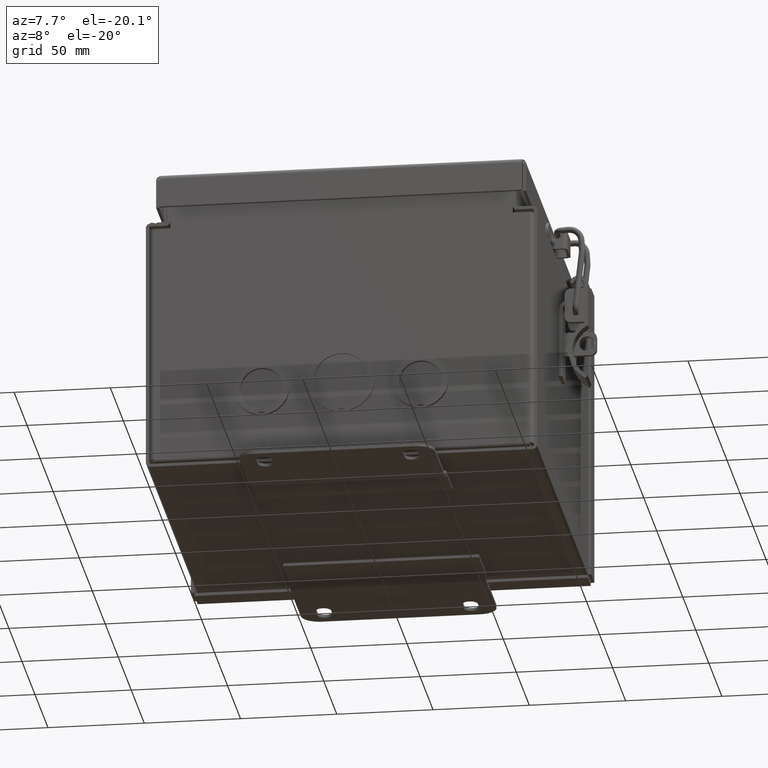
[diagram: clean part render]
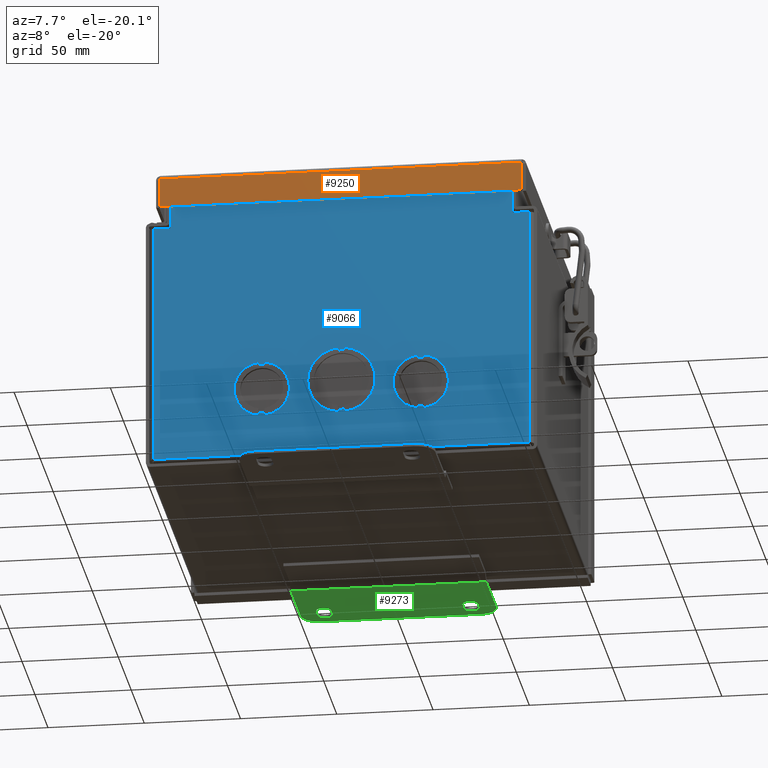
[diagram: same view with three faces highlighted in distinct colors, each labeled with its STEP entity id]
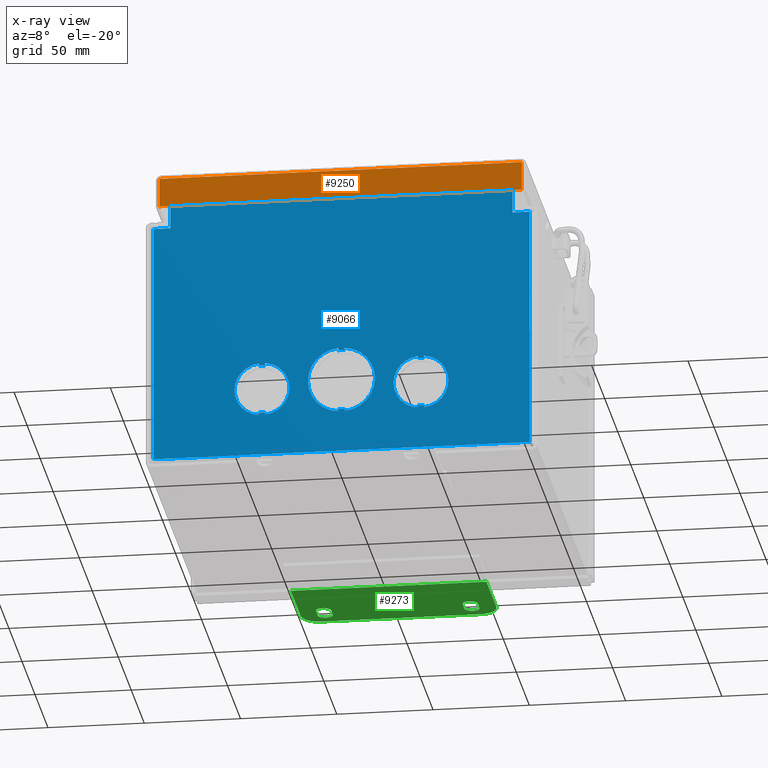
[diagram: x-ray of the same camera — body ghosted, the three highlighted faces saturated]
A machine part, auxiliary view with three faces highlighted in distinct colors.
The next image is the same camera in x-ray (body ghosted, the three faces saturated) — at least one of them is partly hidden behind the body in this view.
Their STEP definitions:

[orange] entity #9250 — the highlighted planar face has unit normal (0, 1, 0).
#533=PLANE($,#9872);
#960=FACE_OUTER_BOUND($,#1487,.T.);
#1487=EDGE_LOOP($,(#7232,#7233,#7234,#7235));
#2577=LINE($,#14626,#3503);
#2583=LINE($,#14654,#3509);
#2588=LINE($,#14716,#3514);
#2590=LINE($,#14719,#3516);
#3503=VECTOR($,#11548,7.41540291308792);
#3509=VECTOR($,#11558,0.59375);
#3514=VECTOR($,#11565,0.59375);
#3516=VECTOR($,#11569,7.41540291308792);
#4266=VERTEX_POINT($,#14624);
#4267=VERTEX_POINT($,#14625);
#4273=VERTEX_POINT($,#14653);
#4275=VERTEX_POINT($,#14715);
#5304=EDGE_CURVE($,#4266,#4267,#2577,.T.);
#5312=EDGE_CURVE($,#4273,#4267,#2583,.T.);
#5319=EDGE_CURVE($,#4266,#4275,#2588,.T.);
#5321=EDGE_CURVE($,#4275,#4273,#2590,.T.);
#7232=ORIENTED_EDGE($,*,*,#5304,.T.);
#7233=ORIENTED_EDGE($,*,*,#5312,.F.);
#7234=ORIENTED_EDGE($,*,*,#5321,.F.);
#7235=ORIENTED_EDGE($,*,*,#5319,.F.);
#9250=ADVANCED_FACE($,(#960),#533,.F.);
#9872=AXIS2_PLACEMENT_3D($,#14720,#11570,#11571);
#11548=DIRECTION($,(-1.,-2.99047488032506E-016,1.11348050429435E-030));
#11558=DIRECTION($,(4.93038065763132E-031,-5.39030285815812E-015,-1.));
#11565=DIRECTION($,(-4.93038065763132E-031,5.39030285815812E-015,1.));
#11569=DIRECTION($,(-1.,-3.75409045608864E-016,-1.90456163260947E-016));
#11570=DIRECTION('center_axis',(2.99047488032506E-016,-1.,5.86882326369301E-015));
#11571=DIRECTION('ref_axis',(1.,0.,-1.40998324127395E-016));
#14624=CARTESIAN_POINT('',(3.48895145654396,3.84375,0.0937499999999993));
#14625=CARTESIAN_POINT('',(-3.92645145654396,3.84375,0.0937499999999987));
#14626=CARTESIAN_POINT($,(-0.218750000000001,3.84375,0.0937499999999987));
#14653=CARTESIAN_POINT('',(-3.92645145654396,3.84375,0.687499999999998));
#14654=CARTESIAN_POINT($,(-3.92645145654396,3.84375,0.0937499999999979));
#14715=CARTESIAN_POINT('',(3.48895145654396,3.84375,0.6875));
#14716=CARTESIAN_POINT($,(3.48895145654396,3.84375,0.0937499999999993));
#14719=CARTESIAN_POINT($,(3.48895145654396,3.84375,0.6875));
#14720=CARTESIAN_POINT('Origin',(-0.21875,3.84375,0.345259844225641));

[blue] entity #9066 — the highlighted planar face has unit normal (0, -1, -0).
#179=FACE_BOUND($,#1297,.T.);
#180=FACE_BOUND($,#1298,.T.);
#181=FACE_BOUND($,#1299,.T.);
#182=FACE_BOUND($,#1300,.T.);
#401=PLANE($,#9675);
#1297=EDGE_LOOP($,(#6419,#6420,#6421,#6422,#6423,#6424,#6425,#6426,#6427,
#6428));
#1298=EDGE_LOOP($,(#6429,#6430,#6431,#6432,#6433,#6434,#6435,#6436));
#1299=EDGE_LOOP($,(#6437,#6438,#6439,#6440,#6441,#6442,#6443,#6444));
#1300=EDGE_LOOP($,(#6445,#6446,#6447,#6448,#6449,#6450,#6451,#6452));
#1826=CIRCLE($,#9616,0.6875);
#1830=CIRCLE($,#9624,0.6875);
#1838=CIRCLE($,#9647,0.5625);
#1840=CIRCLE($,#9653,0.5625);
#1846=CIRCLE($,#9676,0.5625);
#1847=CIRCLE($,#9677,0.5625);
#2161=LINE($,#13113,#3087);
#2164=LINE($,#13119,#3090);
#2168=LINE($,#13128,#3094);
#2175=LINE($,#13143,#3101);
#2189=LINE($,#13176,#3115);
#2234=LINE($,#13288,#3160);
#2237=LINE($,#13294,#3163);
#2241=LINE($,#13306,#3167);
#2244=LINE($,#13312,#3170);
#2247=LINE($,#13318,#3173);
#2251=LINE($,#13328,#3177);
#2290=LINE($,#13418,#3216);
#2291=LINE($,#13419,#3217);
#2292=LINE($,#13420,#3218);
#2293=LINE($,#13423,#3219);
#2294=LINE($,#13425,#3220);
#2295=LINE($,#13427,#3221);
#2296=LINE($,#13429,#3222);
#2297=LINE($,#13431,#3223);
#2298=LINE($,#13433,#3224);
#2299=LINE($,#13435,#3225);
#2300=LINE($,#13436,#3226);
#2301=LINE($,#13439,#3227);
#2302=LINE($,#13441,#3228);
#2303=LINE($,#13445,#3229);
#2304=LINE($,#13447,#3230);
#2305=LINE($,#13449,#3231);
#2306=LINE($,#13452,#3232);
#3087=VECTOR($,#10604,0.0624635646208575);
#3090=VECTOR($,#10609,0.0499999999999996);
#3094=VECTOR($,#10615,0.0624635646217545);
#3101=VECTOR($,#10626,0.0500000000000002);
#3115=VECTOR($,#10652,0.062463564621258);
#3160=VECTOR($,#10757,0.125220388418771);
#3163=VECTOR($,#10762,0.0499947152542752);
#3167=VECTOR($,#10774,0.0499947152542758);
#3170=VECTOR($,#10779,0.125000000214516);
#3173=VECTOR($,#10784,0.0499947152542758);
#3177=VECTOR($,#10796,0.0499947152542754);
#3216=VECTOR($,#10877,0.0624635646203624);
#3217=VECTOR($,#10878,0.0500000000000001);
#3218=VECTOR($,#10879,0.0499999999999996);
#3219=VECTOR($,#10880,7.);
#3220=VECTOR($,#10881,0.781250000000001);
#3221=VECTOR($,#10882,0.343749999999998);
#3222=VECTOR($,#10883,4.96875);
#3223=VECTOR($,#10884,7.6875);
#3224=VECTOR($,#10885,4.96875);
#3225=VECTOR($,#10886,0.343750000000001);
#3226=VECTOR($,#10887,0.781250000000001);
#3227=VECTOR($,#10888,0.125220388418771);
#3228=VECTOR($,#10889,0.0499947152542753);
#3229=VECTOR($,#10892,0.0499947152542758);
#3230=VECTOR($,#10893,0.125000000214515);
#3231=VECTOR($,#10894,0.0499947152542758);
#3232=VECTOR($,#10897,0.0499947152542756);
#3976=VERTEX_POINT($,#13109);
#3978=VERTEX_POINT($,#13112);
#3980=VERTEX_POINT($,#13118);
#3982=VERTEX_POINT($,#13124);
#3984=VERTEX_POINT($,#13127);
#3990=VERTEX_POINT($,#13142);
#4003=VERTEX_POINT($,#13174);
#4008=VERTEX_POINT($,#13187);
#4018=VERTEX_POINT($,#13214);
#4039=VERTEX_POINT($,#13285);
#4040=VERTEX_POINT($,#13287);
#4042=VERTEX_POINT($,#13293);
#4044=VERTEX_POINT($,#13299);
#4046=VERTEX_POINT($,#13305);
#4048=VERTEX_POINT($,#13311);
#4050=VERTEX_POINT($,#13317);
#4052=VERTEX_POINT($,#13323);
#4082=VERTEX_POINT($,#13417);
#4083=VERTEX_POINT($,#13421);
#4084=VERTEX_POINT($,#13422);
#4085=VERTEX_POINT($,#13424);
#4086=VERTEX_POINT($,#13426);
#4087=VERTEX_POINT($,#13428);
#4088=VERTEX_POINT($,#13430);
#4089=VERTEX_POINT($,#13432);
#4090=VERTEX_POINT($,#13434);
#4091=VERTEX_POINT($,#13437);
#4092=VERTEX_POINT($,#13438);
#4093=VERTEX_POINT($,#13440);
#4094=VERTEX_POINT($,#13442);
#4095=VERTEX_POINT($,#13444);
#4096=VERTEX_POINT($,#13446);
#4097=VERTEX_POINT($,#13448);
#4098=VERTEX_POINT($,#13450);
#4806=EDGE_CURVE($,#3978,#3976,#2161,.T.);
#4809=EDGE_CURVE($,#3980,#3978,#2164,.T.);
#4813=EDGE_CURVE($,#3984,#3982,#2168,.T.);
#4820=EDGE_CURVE($,#3990,#3984,#2175,.T.);
#4836=EDGE_CURVE($,#3976,#4003,#2189,.T.);
#4841=EDGE_CURVE($,#4008,#3990,#1826,.T.);
#4854=EDGE_CURVE($,#4018,#3980,#1830,.T.);
#4892=EDGE_CURVE($,#4040,#4039,#2234,.T.);
#4895=EDGE_CURVE($,#4042,#4040,#2237,.T.);
#4898=EDGE_CURVE($,#4044,#4042,#1838,.T.);
#4901=EDGE_CURVE($,#4046,#4044,#2241,.T.);
#4904=EDGE_CURVE($,#4048,#4046,#2244,.T.);
#4907=EDGE_CURVE($,#4050,#4048,#2247,.T.);
#4910=EDGE_CURVE($,#4052,#4050,#1840,.T.);
#4913=EDGE_CURVE($,#4039,#4052,#2251,.T.);
#4957=EDGE_CURVE($,#3982,#4082,#2290,.T.);
#4958=EDGE_CURVE($,#4082,#4018,#2291,.T.);
#4959=EDGE_CURVE($,#4003,#4008,#2292,.T.);
#4960=EDGE_CURVE($,#4083,#4084,#2293,.T.);
#4961=EDGE_CURVE($,#4084,#4085,#2294,.T.);
#4962=EDGE_CURVE($,#4086,#4085,#2295,.T.);
#4963=EDGE_CURVE($,#4086,#4087,#2296,.T.);
#4964=EDGE_CURVE($,#4087,#4088,#2297,.T.);
#4965=EDGE_CURVE($,#4088,#4089,#2298,.T.);
#4966=EDGE_CURVE($,#4090,#4089,#2299,.T.);
#4967=EDGE_CURVE($,#4090,#4083,#2300,.T.);
#4968=EDGE_CURVE($,#4091,#4092,#2301,.T.);
#4969=EDGE_CURVE($,#4092,#4093,#2302,.T.);
#4970=EDGE_CURVE($,#4093,#4094,#1846,.T.);
#4971=EDGE_CURVE($,#4094,#4095,#2303,.T.);
#4972=EDGE_CURVE($,#4095,#4096,#2304,.T.);
#4973=EDGE_CURVE($,#4096,#4097,#2305,.T.);
#4974=EDGE_CURVE($,#4097,#4098,#1847,.T.);
#4975=EDGE_CURVE($,#4098,#4091,#2306,.T.);
#6419=ORIENTED_EDGE($,*,*,#4813,.T.);
#6420=ORIENTED_EDGE($,*,*,#4957,.T.);
#6421=ORIENTED_EDGE($,*,*,#4958,.T.);
#6422=ORIENTED_EDGE($,*,*,#4854,.T.);
#6423=ORIENTED_EDGE($,*,*,#4809,.T.);
#6424=ORIENTED_EDGE($,*,*,#4806,.T.);
#6425=ORIENTED_EDGE($,*,*,#4836,.T.);
#6426=ORIENTED_EDGE($,*,*,#4959,.T.);
#6427=ORIENTED_EDGE($,*,*,#4841,.T.);
#6428=ORIENTED_EDGE($,*,*,#4820,.T.);
#6429=ORIENTED_EDGE($,*,*,#4960,.T.);
#6430=ORIENTED_EDGE($,*,*,#4961,.T.);
#6431=ORIENTED_EDGE($,*,*,#4962,.F.);
#6432=ORIENTED_EDGE($,*,*,#4963,.T.);
#6433=ORIENTED_EDGE($,*,*,#4964,.T.);
#6434=ORIENTED_EDGE($,*,*,#4965,.T.);
#6435=ORIENTED_EDGE($,*,*,#4966,.F.);
#6436=ORIENTED_EDGE($,*,*,#4967,.T.);
#6437=ORIENTED_EDGE($,*,*,#4968,.T.);
#6438=ORIENTED_EDGE($,*,*,#4969,.T.);
#6439=ORIENTED_EDGE($,*,*,#4970,.T.);
#6440=ORIENTED_EDGE($,*,*,#4971,.T.);
#6441=ORIENTED_EDGE($,*,*,#4972,.T.);
#6442=ORIENTED_EDGE($,*,*,#4973,.T.);
#6443=ORIENTED_EDGE($,*,*,#4974,.T.);
#6444=ORIENTED_EDGE($,*,*,#4975,.T.);
#6445=ORIENTED_EDGE($,*,*,#4910,.T.);
#6446=ORIENTED_EDGE($,*,*,#4907,.T.);
#6447=ORIENTED_EDGE($,*,*,#4904,.T.);
#6448=ORIENTED_EDGE($,*,*,#4901,.T.);
#6449=ORIENTED_EDGE($,*,*,#4898,.T.);
#6450=ORIENTED_EDGE($,*,*,#4895,.T.);
#6451=ORIENTED_EDGE($,*,*,#4892,.T.);
#6452=ORIENTED_EDGE($,*,*,#4913,.T.);
#9066=ADVANCED_FACE($,(#179,#180,#181,#182),#401,.T.);
#9616=AXIS2_PLACEMENT_3D($,#13188,#10661,#10662);
#9624=AXIS2_PLACEMENT_3D($,#13215,#10686,#10687);
#9647=AXIS2_PLACEMENT_3D($,#13300,#10768,#10769);
#9653=AXIS2_PLACEMENT_3D($,#13324,#10790,#10791);
#9675=AXIS2_PLACEMENT_3D($,#13416,#10875,#10876);
#9676=AXIS2_PLACEMENT_3D($,#13443,#10890,#10891);
#9677=AXIS2_PLACEMENT_3D($,#13451,#10895,#10896);
#10604=DIRECTION($,(0.999999998583954,-5.32174063587443E-005,0.));
#10609=DIRECTION($,(1.30494034596265E-015,-1.,0.));
#10615=DIRECTION($,(-0.999999998583954,5.32174063587444E-005,0.));
#10626=DIRECTION($,(-1.30494034596265E-015,1.,0.));
#10652=DIRECTION($,(0.999999998583954,5.32174063600493E-005,0.));
#10661=DIRECTION('center_axis',(0.,0.,-1.));
#10662=DIRECTION('ref_axis',(-0.0909620879525723,0.995854356095965,0.));
#10686=DIRECTION('center_axis',(0.,0.,-1.));
#10687=DIRECTION('ref_axis',(0.0909620879525728,-0.995854356095965,0.));
#10757=DIRECTION($,(-0.999999998283873,5.85854353194619E-005,0.));
#10762=DIRECTION($,(-1.30494034596265E-015,1.,0.));
#10768=DIRECTION('center_axis',(0.,0.,-1.));
#10769=DIRECTION('ref_axis',(-0.111169333784827,-0.993801478780263,-1.24394586708817E-015));
#10774=DIRECTION($,(-1.30494034596265E-015,1.,0.));
#10779=DIRECTION($,(0.999999998283873,-5.85854353197112E-005,0.));
#10784=DIRECTION($,(1.30494034596265E-015,-1.,0.));
#10790=DIRECTION('center_axis',(0.,0.,-1.));
#10791=DIRECTION('ref_axis',(0.111365233126191,0.993779545397644,1.24613791203221E-015));
#10796=DIRECTION($,(1.30494034596265E-015,-1.,0.));
#10875=DIRECTION('center_axis',(0.,0.,1.));
#10876=DIRECTION('ref_axis',(1.,0.,0.));
#10877=DIRECTION($,(-0.999999998583954,-5.32174063600493E-005,0.));
#10878=DIRECTION($,(0.,-1.,0.));
#10879=DIRECTION($,(0.,1.,0.));
#10880=DIRECTION($,(-1.,0.,0.));
#10881=DIRECTION($,(-1.59852134029269E-015,-1.,0.));
#10882=DIRECTION($,(1.,0.,0.));
#10883=DIRECTION($,(0.,-1.,0.));
#10884=DIRECTION($,(1.,9.0972759203649E-017,0.));
#10885=DIRECTION($,(0.,1.,0.));
#10886=DIRECTION($,(1.,0.,0.));
#10887=DIRECTION($,(0.,1.,0.));
#10888=DIRECTION($,(-0.999999998283873,-5.85854353207668E-005,0.));
#10889=DIRECTION($,(0.,-1.,0.));
#10890=DIRECTION('center_axis',(0.,0.,-1.));
#10891=DIRECTION('ref_axis',(0.111169333784828,-0.993801478780263,0.));
#10892=DIRECTION($,(0.,-1.,0.));
#10893=DIRECTION($,(0.999999998283873,5.85854353210162E-005,0.));
#10894=DIRECTION($,(0.,1.,0.));
#10895=DIRECTION('center_axis',(0.,0.,-1.));
#10896=DIRECTION('ref_axis',(-0.111365233126193,0.993779545397644,0.));
#10897=DIRECTION($,(0.,1.,0.));
#13109=CARTESIAN_POINT('',(-0.0625000000002029,-0.271596802157119,0.0625));
#13112=CARTESIAN_POINT('',(-0.124963564532609,-0.271593478008218,0.0624999999999993));
#13113=CARTESIAN_POINT($,(-0.0312390091049872,-0.271598465785977,0.0625));
#13118=CARTESIAN_POINT('',(-0.124963564532609,-0.221593478008219,0.0624999999999993));
#13119=CARTESIAN_POINT($,(-0.124963564532609,-0.135796739004109,0.0625));
#13124=CARTESIAN_POINT('',(-0.062500000000698,-1.54090319784288,0.0625));
#13127=CARTESIAN_POINT('',(-3.64354673947109E-005,-1.54090652199178,0.0625000000000007));
#13128=CARTESIAN_POINT($,(-0.0938092191694587,-1.54090153164744,0.0625));
#13142=CARTESIAN_POINT('',(-3.6435467394536E-005,-1.59090652199178,0.0625000000000007));
#13143=CARTESIAN_POINT($,(-3.64354673957162E-005,-0.770453260995889,0.0625));
#13174=CARTESIAN_POINT('',(-3.64354673962844E-005,-0.271593478008218,0.0625));
#13176=CARTESIAN_POINT($,(-0.031260990895015,-0.271595139698075,0.0625));
#13187=CARTESIAN_POINT('',(-3.64354673962844E-005,-0.221593478008218,0.0625));
#13188=CARTESIAN_POINT('Origin',(-0.0625000000000026,-0.906249999999998,
0.0625));
#13214=CARTESIAN_POINT('',(-0.124963564532609,-1.59090652199178,0.0625));
#13215=CARTESIAN_POINT('Origin',(-0.0625000000000026,-0.906249999999998,
0.0625));
#13285=CARTESIAN_POINT('',(1.49985705636652,-1.5402562790319,0.0625000000000169));
#13287=CARTESIAN_POINT('',(1.62507744457039,-1.54026361512286,0.0625000000000182));
#13288=CARTESIAN_POINT($,(0.781243606674171,-1.54021417875005,0.0625));
#13293=CARTESIAN_POINT('',(1.62507744457039,-1.59025833037714,0.0625000000000182));
#13294=CARTESIAN_POINT($,(1.62507744457039,-0.795129165188568,0.0625));
#13299=CARTESIAN_POINT('',(1.62503275025396,-0.4722366681861,0.0625000000000182));
#13300=CARTESIAN_POINT('Origin',(1.5625,-1.03125,0.0625000000000182));
#13305=CARTESIAN_POINT('',(1.62503275025396,-0.522231383440376,0.0625000000000182));
#13306=CARTESIAN_POINT($,(1.62503275025396,-0.261115691720187,0.0625));
#13311=CARTESIAN_POINT('',(1.50003275025396,-0.522224060260948,0.0625000000000169));
#13312=CARTESIAN_POINT($,(0.71875108044656,-0.522178288534137,0.0625));
#13317=CARTESIAN_POINT('',(1.50003275025396,-0.472229345006673,0.0625000000000169));
#13318=CARTESIAN_POINT($,(1.50003275025396,-0.236114672503335,0.0625));
#13323=CARTESIAN_POINT('',(1.49985705636652,-1.59025099428617,0.0625000000000169));
#13324=CARTESIAN_POINT('Origin',(1.5625,-1.03125,0.0625000000000182));
#13328=CARTESIAN_POINT($,(1.49985705636651,-0.770128139515947,0.0625));
#13416=CARTESIAN_POINT('Origin',(-0.0624999999999997,4.23965532107643E-016,
0.0625));
#13417=CARTESIAN_POINT('',(-0.124963564532609,-1.54090652199178,0.0625));
#13418=CARTESIAN_POINT($,(-0.0936907808305419,-1.54090485773534,0.0625));
#13419=CARTESIAN_POINT($,(-0.124963564532609,-0.795453260995889,0.0625));
#13420=CARTESIAN_POINT($,(-3.64354673962844E-005,-0.110796739004109,0.0625));
#13421=CARTESIAN_POINT('',(3.4375,3.3125,0.0625));
#13422=CARTESIAN_POINT('',(-3.5625,3.3125,0.0625));
#13423=CARTESIAN_POINT($,(1.6875,3.3125,0.0625));
#13424=CARTESIAN_POINT('',(-3.5625,2.53125,0.0625));
#13425=CARTESIAN_POINT($,(-3.5625,3.40625,0.0625));
#13426=CARTESIAN_POINT('',(-3.90625,2.53125,0.0625));
#13427=CARTESIAN_POINT($,(-4.,2.53125,0.0625));
#13428=CARTESIAN_POINT('',(-3.90625,-2.4375,0.0625));
#13429=CARTESIAN_POINT($,(-3.90625,1.265625,0.0625));
#13430=CARTESIAN_POINT('',(3.78125,-2.4375,0.0625));
#13431=CARTESIAN_POINT($,(-1.984375,-2.4375,0.0625));
#13432=CARTESIAN_POINT('',(3.78125,2.53125,0.0625));
#13433=CARTESIAN_POINT($,(3.78125,-1.21875,0.0625));
#13434=CARTESIAN_POINT('',(3.4375,2.53125,0.0625));
#13435=CARTESIAN_POINT($,(-4.,2.53125,0.0625));
#13436=CARTESIAN_POINT($,(3.4375,2.53125,0.0625));
#13437=CARTESIAN_POINT('',(-1.62485705636652,-1.5402562790319,0.0625));
#13438=CARTESIAN_POINT('',(-1.7500774445704,-1.54026361512287,0.0625));
#13439=CARTESIAN_POINT($,(-0.843633412572233,-1.54021051070457,0.0625));
#13440=CARTESIAN_POINT('',(-1.7500774445704,-1.59025833037714,0.0625));
#13441=CARTESIAN_POINT($,(-1.7500774445704,-0.770131807561433,0.0625));
#13442=CARTESIAN_POINT('',(-1.75003275025397,-0.472236668186102,0.0625));
#13443=CARTESIAN_POINT('Origin',(-1.6875,-1.03125,0.0625));
#13444=CARTESIAN_POINT('',(-1.75003275025397,-0.522231383440378,0.0625));
#13445=CARTESIAN_POINT($,(-1.75003275025397,-0.236118334093051,0.0625));
#13446=CARTESIAN_POINT('',(-1.62503275025397,-0.52222406026095,0.0625));
#13447=CARTESIAN_POINT($,(-0.906251080446561,-0.522181950123851,0.0625));
#13448=CARTESIAN_POINT('',(-1.62503275025397,-0.472229345006674,0.0625));
#13449=CARTESIAN_POINT($,(-1.62503275025397,-0.261112030130475,0.0625));
#13450=CARTESIAN_POINT('',(-1.62485705636652,-1.59025099428617,0.0625));
#13451=CARTESIAN_POINT('Origin',(-1.6875,-1.03125,0.0625));
#13452=CARTESIAN_POINT($,(-1.62485705636652,-0.795125497143087,0.0625));

[green] entity #9273 — the highlighted planar face has unit normal (0, -0, -1).
#188=FACE_BOUND($,#1510,.T.);
#189=FACE_BOUND($,#1511,.T.);
#190=FACE_BOUND($,#1512,.T.);
#546=PLANE($,#9904);
#1510=EDGE_LOOP($,(#7324,#7325,#7326,#7327));
#1511=EDGE_LOOP($,(#7328,#7329,#7330,#7331));
#1512=EDGE_LOOP($,(#7332,#7333,#7334,#7335,#7336,#7337));
#1874=CIRCLE($,#9885,0.15625);
#1876=CIRCLE($,#9889,0.15625);
#1878=CIRCLE($,#9893,0.15625);
#1880=CIRCLE($,#9897,0.15625);
#1882=CIRCLE($,#9901,0.375);
#1884=CIRCLE($,#9905,0.375);
#2608=LINE($,#14834,#3534);
#2612=LINE($,#14845,#3538);
#2616=LINE($,#14858,#3542);
#2620=LINE($,#14869,#3546);
#2624=LINE($,#14882,#3550);
#2627=LINE($,#14888,#3553);
#2628=LINE($,#14890,#3554);
#2629=LINE($,#14892,#3555);
#3534=VECTOR($,#11619,0.25);
#3538=VECTOR($,#11631,0.25);
#3542=VECTOR($,#11643,0.25);
#3546=VECTOR($,#11655,0.25);
#3550=VECTOR($,#11667,3.25);
#3553=VECTOR($,#11672,1.50822330470336);
#3554=VECTOR($,#11673,4.);
#3555=VECTOR($,#11674,1.50822330470336);
#4284=VERTEX_POINT($,#14824);
#4285=VERTEX_POINT($,#14825);
#4288=VERTEX_POINT($,#14833);
#4290=VERTEX_POINT($,#14839);
#4292=VERTEX_POINT($,#14848);
#4293=VERTEX_POINT($,#14849);
#4296=VERTEX_POINT($,#14857);
#4298=VERTEX_POINT($,#14863);
#4300=VERTEX_POINT($,#14872);
#4301=VERTEX_POINT($,#14873);
#4304=VERTEX_POINT($,#14881);
#4306=VERTEX_POINT($,#14887);
#4307=VERTEX_POINT($,#14889);
#4308=VERTEX_POINT($,#14891);
#5341=EDGE_CURVE($,#4284,#4285,#1874,.T.);
#5345=EDGE_CURVE($,#4285,#4288,#2608,.T.);
#5348=EDGE_CURVE($,#4288,#4290,#1876,.T.);
#5351=EDGE_CURVE($,#4290,#4284,#2612,.T.);
#5353=EDGE_CURVE($,#4292,#4293,#1878,.T.);
#5357=EDGE_CURVE($,#4293,#4296,#2616,.T.);
#5360=EDGE_CURVE($,#4296,#4298,#1880,.T.);
#5363=EDGE_CURVE($,#4298,#4292,#2620,.T.);
#5365=EDGE_CURVE($,#4300,#4301,#1882,.T.);
#5369=EDGE_CURVE($,#4301,#4304,#2624,.T.);
#5372=EDGE_CURVE($,#4300,#4306,#2627,.T.);
#5373=EDGE_CURVE($,#4306,#4307,#2628,.T.);
#5374=EDGE_CURVE($,#4307,#4308,#2629,.T.);
#5375=EDGE_CURVE($,#4304,#4308,#1884,.T.);
#7324=ORIENTED_EDGE($,*,*,#5348,.T.);
#7325=ORIENTED_EDGE($,*,*,#5351,.T.);
#7326=ORIENTED_EDGE($,*,*,#5341,.T.);
#7327=ORIENTED_EDGE($,*,*,#5345,.T.);
#7328=ORIENTED_EDGE($,*,*,#5360,.T.);
#7329=ORIENTED_EDGE($,*,*,#5363,.T.);
#7330=ORIENTED_EDGE($,*,*,#5353,.T.);
#7331=ORIENTED_EDGE($,*,*,#5357,.T.);
#7332=ORIENTED_EDGE($,*,*,#5365,.F.);
#7333=ORIENTED_EDGE($,*,*,#5372,.T.);
#7334=ORIENTED_EDGE($,*,*,#5373,.T.);
#7335=ORIENTED_EDGE($,*,*,#5374,.T.);
#7336=ORIENTED_EDGE($,*,*,#5375,.F.);
#7337=ORIENTED_EDGE($,*,*,#5369,.F.);
#9273=ADVANCED_FACE($,(#188,#189,#190),#546,.T.);
#9885=AXIS2_PLACEMENT_3D($,#14826,#11611,#11612);
#9889=AXIS2_PLACEMENT_3D($,#14840,#11624,#11625);
#9893=AXIS2_PLACEMENT_3D($,#14850,#11635,#11636);
#9897=AXIS2_PLACEMENT_3D($,#14864,#11648,#11649);
#9901=AXIS2_PLACEMENT_3D($,#14874,#11659,#11660);
#9904=AXIS2_PLACEMENT_3D($,#14886,#11670,#11671);
#9905=AXIS2_PLACEMENT_3D($,#14893,#11675,#11676);
#11611=DIRECTION('center_axis',(1.,1.16049880514603E-017,0.));
#11612=DIRECTION('ref_axis',(0.,3.58068780225577E-014,-1.));
#11619=DIRECTION($,(1.16049880514603E-017,-1.,0.));
#11624=DIRECTION('center_axis',(1.,1.16049880514603E-017,0.));
#11625=DIRECTION('ref_axis',(0.,0.,1.));
#11631=DIRECTION($,(-1.16049880514603E-017,1.,0.));
#11635=DIRECTION('center_axis',(1.,1.16049880514603E-017,0.));
#11636=DIRECTION('ref_axis',(0.,4.47585975281947E-015,-1.));
#11643=DIRECTION($,(1.16049880514603E-017,-1.,0.));
#11648=DIRECTION('center_axis',(1.,1.16049880514603E-017,0.));
#11649=DIRECTION('ref_axis',(0.,0.,1.));
#11655=DIRECTION($,(-1.16049880514603E-017,1.,-3.49676543189026E-016));
#11659=DIRECTION('center_axis',(1.,1.16049880514603E-017,0.));
#11660=DIRECTION('ref_axis',(0.,0.707106781186548,-0.707106781186547));
#11667=DIRECTION($,(0.,0.,1.));
#11670=DIRECTION('center_axis',(-1.,-1.16049880514603E-017,0.));
#11671=DIRECTION('ref_axis',(0.,0.,1.));
#11672=DIRECTION($,(1.16049880514603E-017,-1.,0.));
#11673=DIRECTION($,(0.,0.,1.));
#11674=DIRECTION($,(-1.16049880514603E-017,1.,0.));
#11675=DIRECTION('center_axis',(1.,1.16049880514603E-017,0.));
#11676=DIRECTION('ref_axis',(0.,0.707106781186547,0.707106781186547));
#14824=CARTESIAN_POINT('',(-0.1275,2.625,0.343750000000006));
#14825=CARTESIAN_POINT('',(-0.1275,2.625,0.65625));
#14826=CARTESIAN_POINT('Origin',(-0.1275,2.62499999999999,0.5));
#14833=CARTESIAN_POINT('',(-0.1275,2.375,0.65625));
#14834=CARTESIAN_POINT($,(-0.1275,1.87088834764832,0.65625));
#14839=CARTESIAN_POINT('',(-0.1275,2.375,0.343750000000006));
#14840=CARTESIAN_POINT('Origin',(-0.1275,2.375,0.500000000000007));
#14845=CARTESIAN_POINT($,(-0.1275,1.80838834764832,0.343750000000007));
#14848=CARTESIAN_POINT('',(-0.1275,2.625,3.34375));
#14849=CARTESIAN_POINT('',(-0.1275,2.625,3.65625));
#14850=CARTESIAN_POINT('Origin',(-0.1275,2.625,3.5));
#14857=CARTESIAN_POINT('',(-0.1275,2.375,3.65625));
#14858=CARTESIAN_POINT($,(-0.1275,1.87088834764832,3.65625));
#14863=CARTESIAN_POINT('',(-0.1275,2.375,3.34375));
#14864=CARTESIAN_POINT('Origin',(-0.1275,2.375,3.5));
#14869=CARTESIAN_POINT($,(-0.1275,1.80838834764832,3.34375));
#14872=CARTESIAN_POINT('',(-0.1275,2.625,0.));
#14873=CARTESIAN_POINT('',(-0.1275,3.,0.375));
#14874=CARTESIAN_POINT('Origin',(-0.1275,2.625,0.375));
#14881=CARTESIAN_POINT('',(-0.1275,3.,3.625));
#14882=CARTESIAN_POINT($,(-0.1275,3.,0.));
#14886=CARTESIAN_POINT('Origin',(-0.1275,1.11677669529664,0.));
#14887=CARTESIAN_POINT('',(-0.1275,1.11677669529664,0.));
#14888=CARTESIAN_POINT($,(-0.1275,3.,0.));
#14889=CARTESIAN_POINT('',(-0.1275,1.11677669529664,4.));
#14890=CARTESIAN_POINT($,(-0.1275,1.11677669529664,0.));
#14891=CARTESIAN_POINT('',(-0.1275,2.625,4.));
#14892=CARTESIAN_POINT($,(-0.1275,3.,4.));
#14893=CARTESIAN_POINT('Origin',(-0.1275,2.625,3.625));